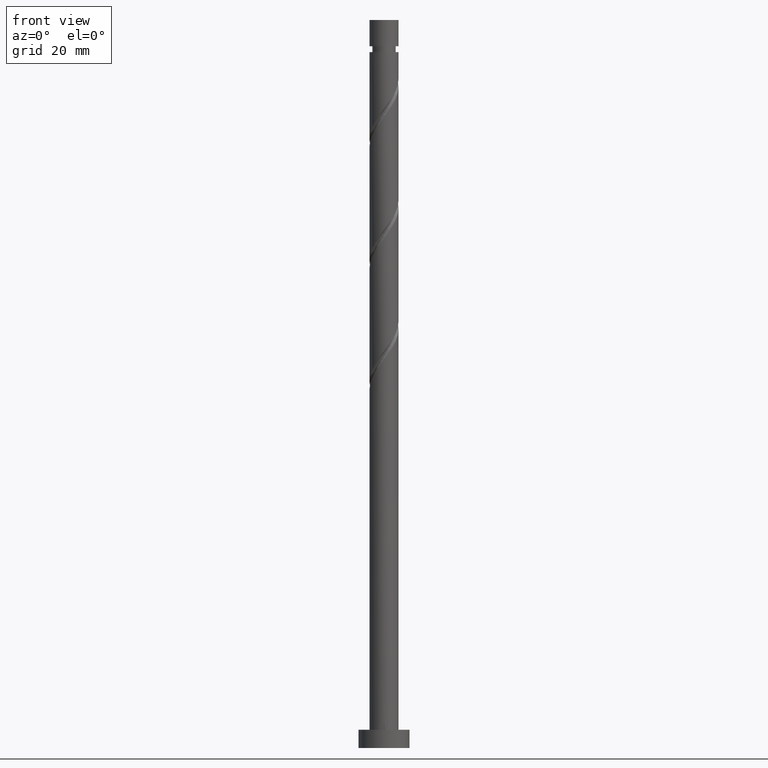
[diagram: clean part render]
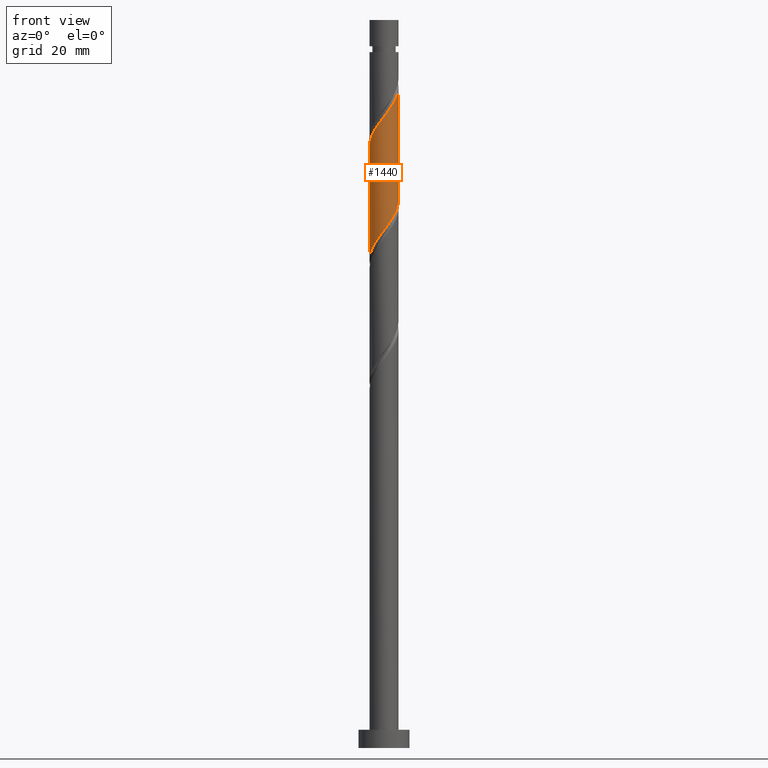
[diagram: same view with one face highlighted and labeled with its STEP entity id]
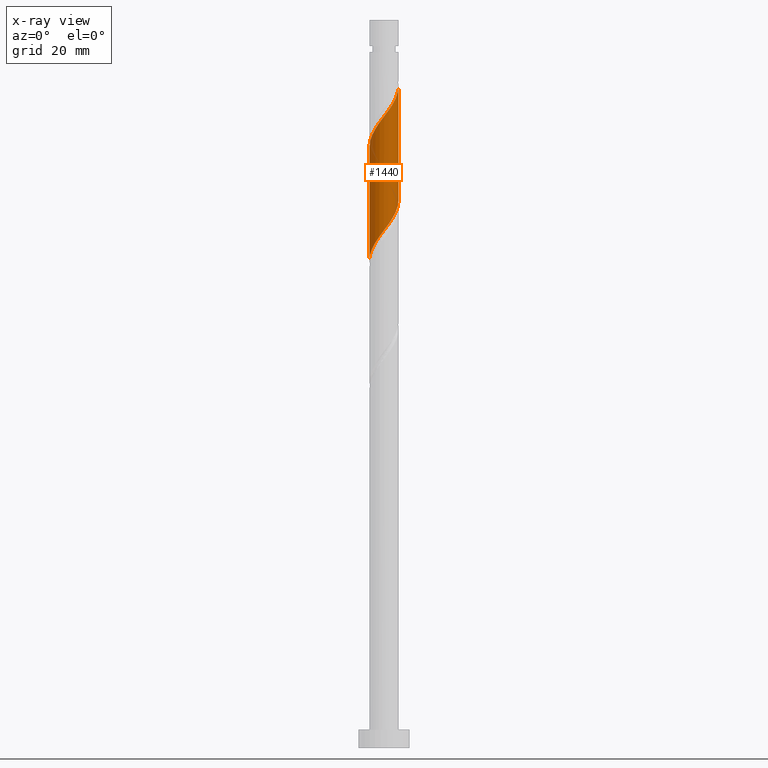
[diagram: x-ray of the same camera — body ghosted, the highlighted face saturated]
A machine part, front view. The second image highlights one B-rep face of the part: STEP entity #1440.
The next image is the same camera in x-ray: the body ghosted, the highlighted face saturated — about 0% of this face is hidden behind the body in this view.
In plain terms, the highlighted cylindrical surface (edge-blend (fillet) strip) has radius 4 mm, axis along (-0, -0, -1).
Its self-contained STEP definition (entity closure, byte-faithful):
#6 = ORIENTED_EDGE ( 'NONE', *, *, #309, .F. ) ;
#29 =( BOUNDED_CURVE ( )  B_SPLINE_CURVE ( 2, ( #1155, #910, #1471, #1692, #212, #69, #760, #617, #484, #1017, #88, #1171, #1053, #1321, #256, #1595, #500, #1040, #1461, #1552, #340, #1562, #882, #1028, #347, #358, #370 ),
 .UNSPECIFIED., .F., .T. ) 
 B_SPLINE_CURVE_WITH_KNOTS ( ( 3, 2, 2, 2, 2, 2, 2, 2, 2, 2, 2, 2, 2, 3 ),
 ( 0.5545317669814464612, 0.5625000000000000000, 0.5729166666666667407, 0.5833333333333332593, 0.5937500000000000000, 0.6041666666666667407, 0.6145833333333332593, 0.6250000000000000000, 0.6354166666666667407, 0.6458333333333332593, 0.6562500000000000000, 0.6666666666666667407, 0.6770833333333332593, 0.6795317669814462391 ),
 .UNSPECIFIED. ) 
 CURVE ( )  GEOMETRIC_REPRESENTATION_ITEM ( )  RATIONAL_B_SPLINE_CURVE ( ( 0.9062941362546457214, 0.9031415850403504697, 0.9090909090909254919, 0.9013135103398440817, 0.9090909090909254919, 0.9013135103398440817, 0.9090909090909254919, 0.9013135103398440817, 0.9090909090909254919, 0.9013135103398440817, 0.9090909090909254919, 0.9013135103398440817, 0.9090909090909254919, 0.9013135103398440817, 0.9090909090909254919, 0.9013135103398440817, 0.9090909090909254919, 0.9013135103398440817, 0.9090909090909254919, 0.9013135103398440817, 0.9090909090909254919, 0.9013135103398440817, 0.9090909090909254919, 0.9013135103398440817, 0.9090909090909254919, 0.9072628343904193260, 0.9062941362546459434 ) ) 
 REPRESENTATION_ITEM ( '' )  );
#35 = DIRECTION ( 'NONE',  ( -0.000000000000000000, -0.000000000000000000, -1.000000000000000000 ) ) ;
#41 = CARTESIAN_POINT ( 'NONE',  ( 3.919999999999999929, -0.7959899496852981260, 149.5330067168299024 ) ) ;
#46 = VECTOR ( 'NONE', #850, 1000.000000000000000 ) ;
#51 = CARTESIAN_POINT ( 'NONE',  ( 2.648031390325374268, -3.043886962058127033, 146.0607844946076739 ) ) ;
#69 = CARTESIAN_POINT ( 'NONE',  ( -3.345617825659331857, -2.254808073111004951, 168.2830067168299024 ) ) ;
#88 = CARTESIAN_POINT ( 'NONE',  ( -1.270652482415439266, -3.792814557677653742, 171.7552289390521878 ) ) ;
#167 = VERTEX_POINT ( 'NONE', #1253 ) ;
#189 = CARTESIAN_POINT ( 'NONE',  ( -1.783437906669447237, -3.580411880364394506, 139.8107844946076739 ) ) ;
#198 = LINE ( 'NONE', #743, #530 ) ;
#204 = CARTESIAN_POINT ( 'NONE',  ( 2.996824607992349954, -2.649347517584566436, 146.7552289390521310 ) ) ;
#212 = CARTESIAN_POINT ( 'NONE',  ( -3.580411880364401167, -1.783437906669447681, 167.5885622723854738 ) ) ;
#242 = CARTESIAN_POINT ( 'NONE',  ( 0.000000000000000000, 0.000000000000000000, 200.0000000000000000 ) ) ;
#256 = CARTESIAN_POINT ( 'NONE',  ( 0.7959899496852973488, -3.920000000000006146, 174.5330067168299593 ) ) ;
#284 = EDGE_CURVE ( 'NONE', #1377, #167, #1643, .T. ) ;
#309 = EDGE_CURVE ( 'NONE', #639, #1493, #29, .T. ) ;
#317 = CARTESIAN_POINT ( 'NONE',  ( 0.2457034069343148608, -3.992446597741900582, 142.5885622723854453 ) ) ;
#333 = LINE ( 'NONE', #1411, #46 ) ;
#340 = CARTESIAN_POINT ( 'NONE',  ( 3.334708473430082698, -2.209008691072460451, 178.6996733834966165 ) ) ;
#347 = CARTESIAN_POINT ( 'NONE',  ( 3.992446597741906356, -0.2457034069343207172, 181.4774511612743879 ) ) ;
#358 = CARTESIAN_POINT ( 'NONE',  ( 4.000000000000007105, -0.1229678066306962303, 181.6396097069250573 ) ) ;
#370 = CARTESIAN_POINT ( 'NONE',  ( 4.000000000000006217, -7.925505755118632701E-16, 181.8027733949532490 ) ) ;
#401 = EDGE_LOOP ( 'NONE', ( #432, #6, #566, #1207 ) ) ;
#428 = CARTESIAN_POINT ( 'NONE',  ( -4.000000000000000888, -0.1229678066306847117, 134.0930703934014332 ) ) ;
#432 = ORIENTED_EDGE ( 'NONE', *, *, #1147, .F. ) ;
#457 = CARTESIAN_POINT ( 'NONE',  ( -3.625529984802032590, -1.769985991819530646, 136.3385622723854738 ) ) ;
#484 = CARTESIAN_POINT ( 'NONE',  ( -2.209008691072457786, -3.334708473430083586, 170.3663400501632168 ) ) ;
#500 = CARTESIAN_POINT ( 'NONE',  ( 1.783437906669447015, -3.580411880364402499, 175.9218956057188450 ) ) ;
#530 = VECTOR ( 'NONE', #35, 1000.000000000000000 ) ;
#563 = CARTESIAN_POINT ( 'NONE',  ( 0.7713189730113366727, -3.960099130553264235, 143.2830067168299308 ) ) ;
#566 = ORIENTED_EDGE ( 'NONE', *, *, #1075, .T. ) ;
#579 = CARTESIAN_POINT ( 'NONE',  ( 3.345617825659324751, -2.254808073111005395, 147.4496733834965596 ) ) ;
#617 = CARTESIAN_POINT ( 'NONE',  ( -2.648031390325380929, -3.043886962058129253, 169.6718956057187881 ) ) ;
#639 = VERTEX_POINT ( 'NONE', #834 ) ;
#729 = CARTESIAN_POINT ( 'NONE',  ( -2.254808073111004063, -3.345617825659326083, 139.1163400501632452 ) ) ;
#740 = CARTESIAN_POINT ( 'NONE',  ( -3.960099130553264235, -0.7713189730113380049, 134.9496733834965880 ) ) ;
#743 = CARTESIAN_POINT ( 'NONE',  ( -4.000000000000000000, 0.000000000000000000, 200.0000000000000000 ) ) ;
#751 = CARTESIAN_POINT ( 'NONE',  ( -1.312067740227890411, -3.815205935069464704, 140.5052289390521594 ) ) ;
#760 = CARTESIAN_POINT ( 'NONE',  ( -2.996824607992356615, -2.649347517584567324, 168.9774511612744163 ) ) ;
#834 = CARTESIAN_POINT ( 'NONE',  ( -4.000000000000006217, -1.719685211016307272E-15, 165.1361067282865349 ) ) ;
#850 = DIRECTION ( 'NONE',  ( -0.000000000000000000, -0.000000000000000000, -1.000000000000000000 ) ) ;
#863 = CARTESIAN_POINT ( 'NONE',  ( -3.792814557677648413, -1.270652482415434381, 135.6441178279410451 ) ) ;
#871 = CARTESIAN_POINT ( 'NONE',  ( 4.000000000000000000, 5.174009417492573212E-15, 150.5965733720399555 ) ) ;
#882 = CARTESIAN_POINT ( 'NONE',  ( 3.792814557677653742, -1.270652482415439266, 180.0885622723855022 ) ) ;
#887 = DIRECTION ( 'NONE',  ( -0.000000000000000000, -0.000000000000000000, -1.000000000000000000 ) ) ;
#910 = CARTESIAN_POINT ( 'NONE',  ( -4.000000000000003553, -0.4020151261036969403, 165.6695330974758349 ) ) ;
#977 = AXIS2_PLACEMENT_3D ( 'NONE', #242, #887, #1421 ) ;
#987 = CARTESIAN_POINT ( 'NONE',  ( 1.769985991819530646, -3.625529984802032590, 144.6718956057188166 ) ) ;
#1017 = CARTESIAN_POINT ( 'NONE',  ( -1.769985991819535753, -3.625529984802036587, 171.0607844946076739 ) ) ;
#1028 = CARTESIAN_POINT ( 'NONE',  ( 3.960099130553270452, -0.7713189730113431120, 180.7830067168299308 ) ) ;
#1040 = CARTESIAN_POINT ( 'NONE',  ( 2.254808073111004063, -3.345617825659332301, 176.6163400501632452 ) ) ;
#1053 = CARTESIAN_POINT ( 'NONE',  ( -0.2457034069343184968, -3.992446597741906356, 173.1441178279410735 ) ) ;
#1075 = EDGE_CURVE ( 'NONE', #639, #167, #198, .T. ) ;
#1127 = CARTESIAN_POINT ( 'NONE',  ( 3.815205935069463372, -1.312067740227892632, 148.8385622723854738 ) ) ;
#1135 = CARTESIAN_POINT ( 'NONE',  ( -0.2799121591427069511, -4.024794064930535598, 141.8941178279410451 ) ) ;
#1147 = EDGE_CURVE ( 'NONE', #1493, #1377, #333, .T. ) ;
#1151 = CARTESIAN_POINT ( 'NONE',  ( 4.000000000000006217, -7.925505755118632701E-16, 181.8027733949532205 ) ) ;
#1155 = CARTESIAN_POINT ( 'NONE',  ( -4.000000000000006217, -1.719685211016307272E-15, 165.1361067282865633 ) ) ;
#1171 = CARTESIAN_POINT ( 'NONE',  ( -0.7713189730113413356, -3.960099130553270452, 172.4496733834965880 ) ) ;
#1207 = ORIENTED_EDGE ( 'NONE', *, *, #284, .F. ) ;
#1211 = CARTESIAN_POINT ( 'NONE',  ( 4.000000000000000000, 5.174009417492574001E-15, 150.5965733720399555 ) ) ;
#1253 = CARTESIAN_POINT ( 'NONE',  ( -4.000000000000000000, 4.964656435281891898E-15, 133.9299067053732699 ) ) ;
#1261 = CARTESIAN_POINT ( 'NONE',  ( 4.000000000000000000, -0.4020151261036889467, 150.0631470028506840 ) ) ;
#1270 = CARTESIAN_POINT ( 'NONE',  ( -2.649347517584565992, -2.996824607992349954, 138.4218956057187881 ) ) ;
#1291 = CARTESIAN_POINT ( 'NONE',  ( 3.580411880364393618, -1.783437906669449236, 148.1441178279410167 ) ) ;
#1321 = CARTESIAN_POINT ( 'NONE',  ( 0.2799121591427039535, -4.024794064930540927, 173.8385622723854738 ) ) ;
#1377 = VERTEX_POINT ( 'NONE', #1211 ) ;
#1411 = CARTESIAN_POINT ( 'NONE',  ( 4.000000000000000000, 4.898587196589412829E-16, 200.0000000000000000 ) ) ;
#1421 = DIRECTION ( 'NONE',  ( -1.000000000000000000, 0.000000000000000000, 0.000000000000000000 ) ) ;
#1424 = CARTESIAN_POINT ( 'NONE',  ( -0.7959899496852980150, -3.919999999999999929, 141.1996733834965880 ) ) ;
#1440 = ADVANCED_FACE ( 'NONE', ( #1581 ), #1699, .T. ) ;
#1461 = CARTESIAN_POINT ( 'NONE',  ( 2.649347517584567324, -2.996824607992357503, 177.3107844946077307 ) ) ;
#1471 = CARTESIAN_POINT ( 'NONE',  ( -3.920000000000006146, -0.7959899496852977929, 166.1996733834966165 ) ) ;
#1493 = VERTEX_POINT ( 'NONE', #1151 ) ;
#1526 = CARTESIAN_POINT ( 'NONE',  ( 1.270652482415433937, -3.792814557677649301, 143.9774511612743879 ) ) ;
#1542 = CARTESIAN_POINT ( 'NONE',  ( -3.043886962058127033, -2.648031390325374712, 137.7274511612743595 ) ) ;
#1552 = CARTESIAN_POINT ( 'NONE',  ( 3.043886962058129253, -2.648031390325380929, 178.0052289390521594 ) ) ;
#1562 = CARTESIAN_POINT ( 'NONE',  ( 3.625529984802036143, -1.769985991819535753, 179.3941178279409883 ) ) ;
#1581 = FACE_OUTER_BOUND ( 'NONE', #401, .T. ) ;
#1595 = CARTESIAN_POINT ( 'NONE',  ( 1.312067740227889967, -3.815205935069471810, 175.2274511612743595 ) ) ;
#1641 = CARTESIAN_POINT ( 'NONE',  ( -3.992446597741900582, -0.2457034069343160543, 134.2552289390521594 ) ) ;
#1643 =( BOUNDED_CURVE ( )  B_SPLINE_CURVE ( 2, ( #871, #1261, #41, #1127, #1291, #579, #204, #51, #1660, #987, #1526, #563, #317, #1135, #1424, #751, #189, #729, #1270, #1542, #1669, #457, #863, #740, #1641, #428, #1733 ),
 .UNSPECIFIED., .F., .T. ) 
 B_SPLINE_CURVE_WITH_KNOTS ( ( 3, 2, 2, 2, 2, 2, 2, 2, 2, 2, 2, 2, 2, 3 ),
 ( 0.5545317669814463502, 0.5625000000000000000, 0.5729166666666666297, 0.5833333333333333703, 0.5937500000000000000, 0.6041666666666666297, 0.6145833333333333703, 0.6250000000000000000, 0.6354166666666666297, 0.6458333333333333703, 0.6562500000000000000, 0.6666666666666666297, 0.6770833333333333703, 0.6795317669814464612 ),
 .UNSPECIFIED. ) 
 CURVE ( )  GEOMETRIC_REPRESENTATION_ITEM ( )  RATIONAL_B_SPLINE_CURVE ( ( 0.9062941362546401702, 0.9031415850403445855, 0.9090909090909198298, 0.9013135103398383086, 0.9090909090909198298, 0.9013135103398383086, 0.9090909090909198298, 0.9013135103398383086, 0.9090909090909198298, 0.9013135103398383086, 0.9090909090909198298, 0.9013135103398383086, 0.9090909090909198298, 0.9013135103398383086, 0.9090909090909198298, 0.9013135103398383086, 0.9090909090909198298, 0.9013135103398383086, 0.9090909090909198298, 0.9013135103398383086, 0.9090909090909198298, 0.9013135103398383086, 0.9090909090909198298, 0.9013135103398383086, 0.9090909090909198298, 0.9072628343904134418, 0.9062941362546399482 ) ) 
 REPRESENTATION_ITEM ( '' )  );
#1660 = CARTESIAN_POINT ( 'NONE',  ( 2.209008691072452013, -3.334708473430080478, 145.3663400501632736 ) ) ;
#1669 = CARTESIAN_POINT ( 'NONE',  ( -3.334708473430078701, -2.209008691072453345, 137.0330067168298740 ) ) ;
#1692 = CARTESIAN_POINT ( 'NONE',  ( -3.815205935069471810, -1.312067740227889967, 166.8941178279410167 ) ) ;
#1699 = CYLINDRICAL_SURFACE ( 'NONE', #977, 4.000000000000000000 ) ;
#1733 = CARTESIAN_POINT ( 'NONE',  ( -4.000000000000000000, 4.964656435281891898E-15, 133.9299067053732699 ) ) ;